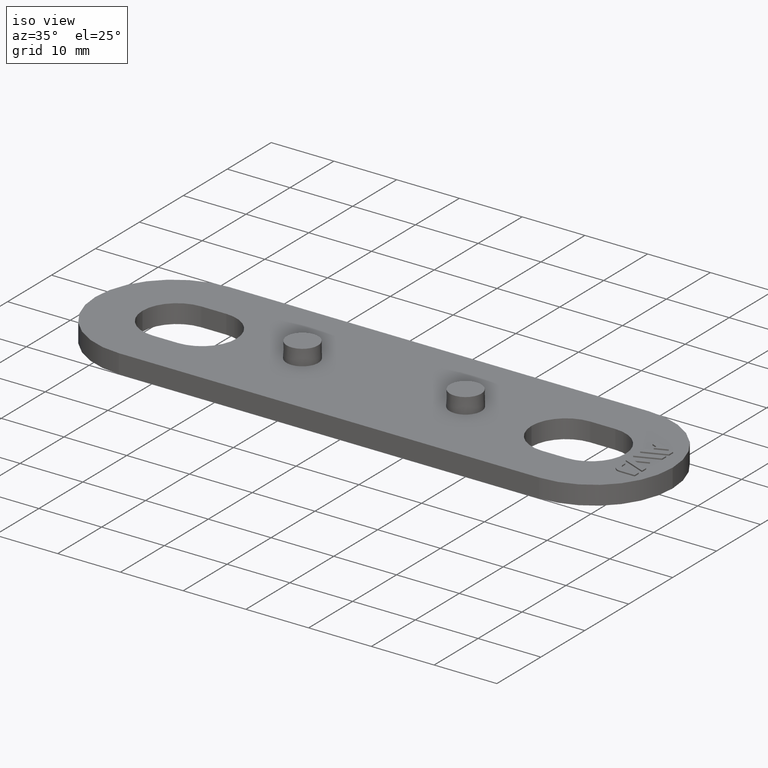
[diagram: clean part render]
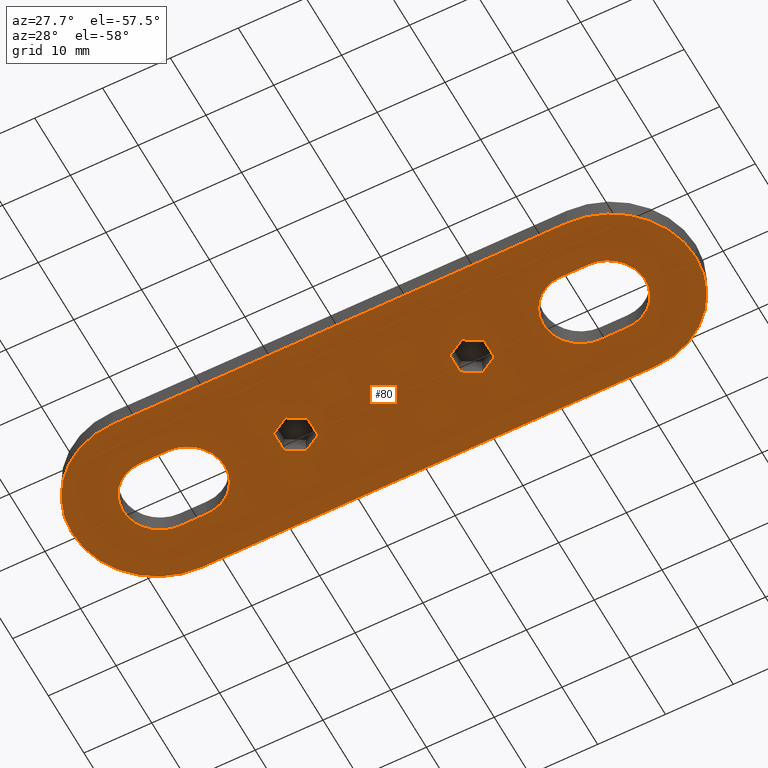
[diagram: tour spotlight — one face highlighted and labeled with its STEP entity id]
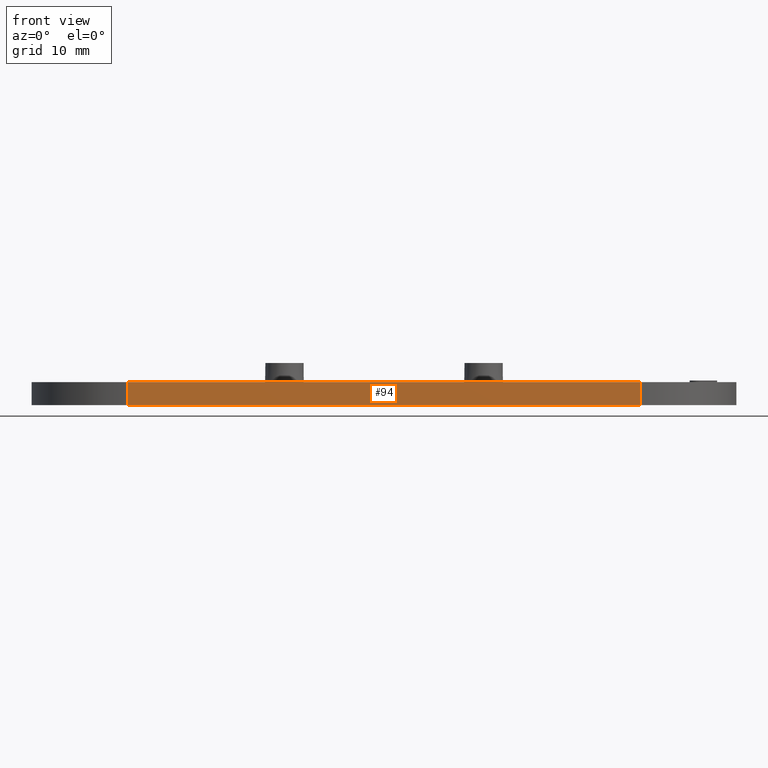
[diagram: tour spotlight — one face highlighted and labeled with its STEP entity id]
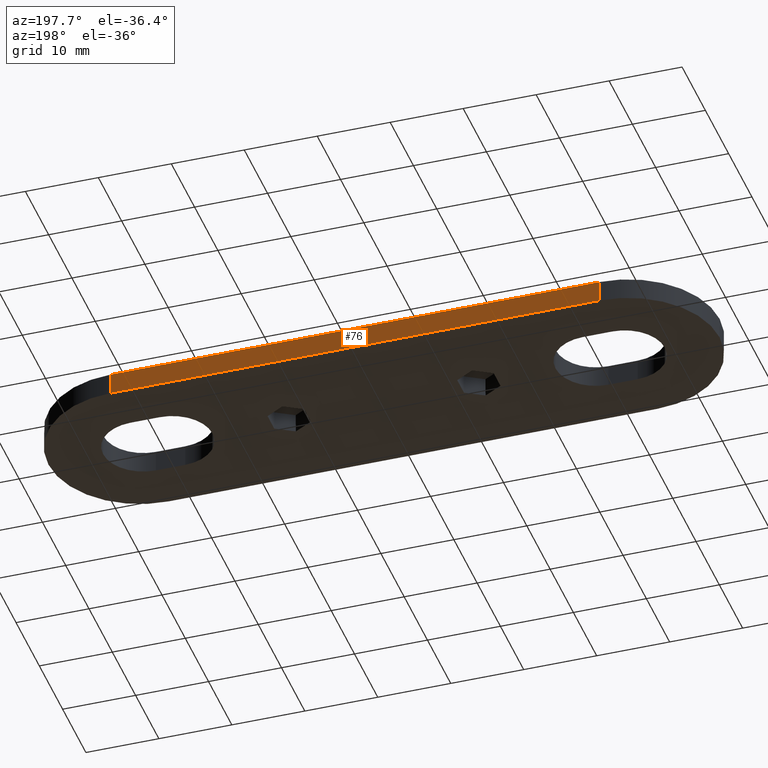
[diagram: tour spotlight — one face highlighted and labeled with its STEP entity id]
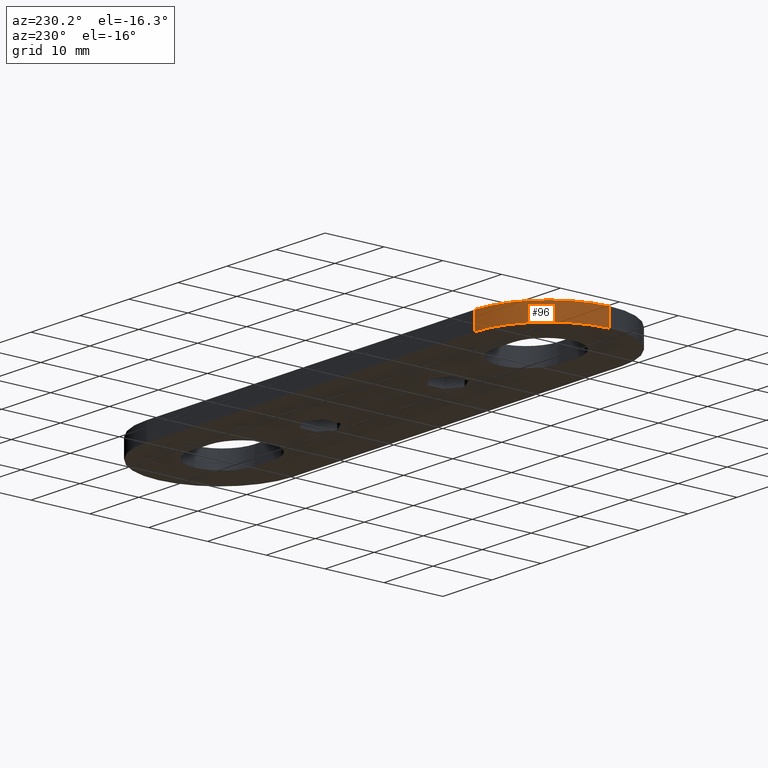
[diagram: tour spotlight — one face highlighted and labeled with its STEP entity id]
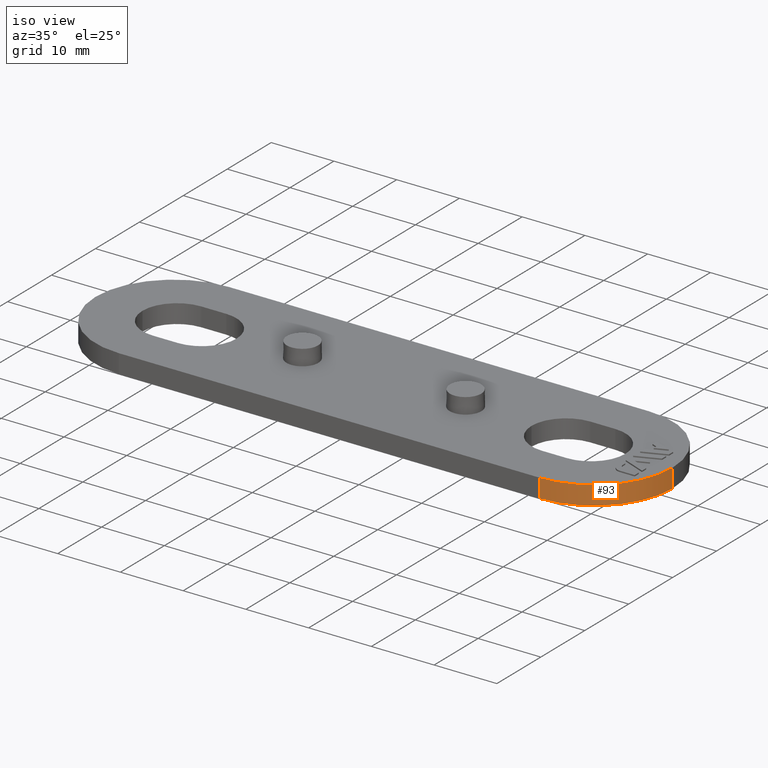
[diagram: tour spotlight — one face highlighted and labeled with its STEP entity id]
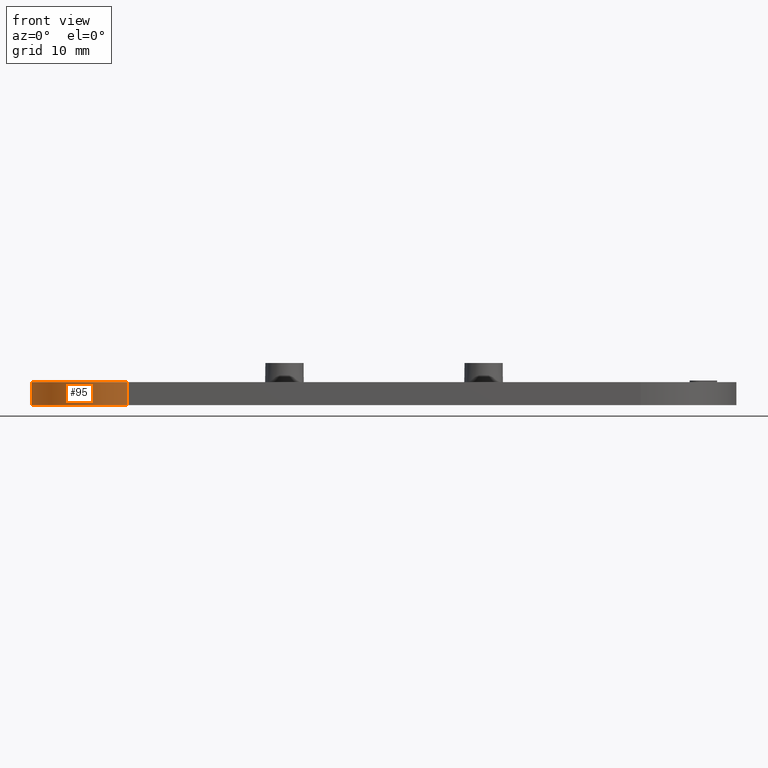
[diagram: tour spotlight — one face highlighted and labeled with its STEP entity id]
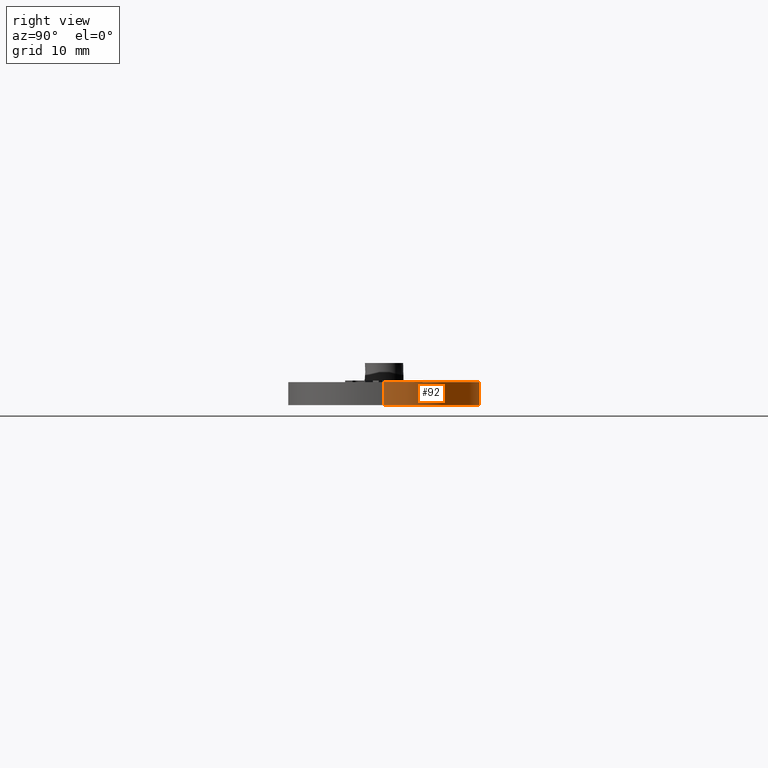
[diagram: tour spotlight — one face highlighted and labeled with its STEP entity id]
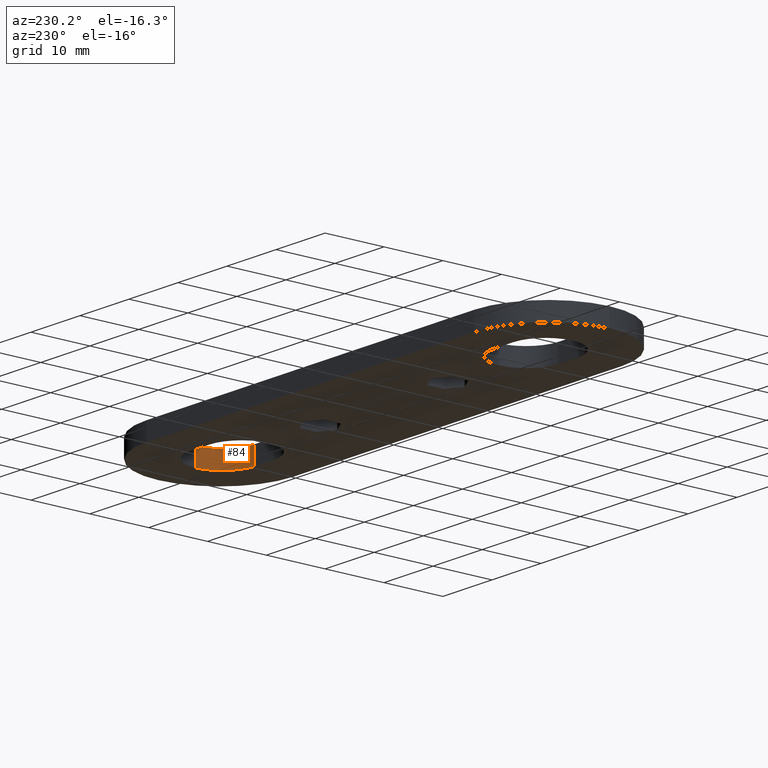
[diagram: tour spotlight — one face highlighted and labeled with its STEP entity id]
A machine part: a face-by-face anatomy tour. The part has 71 B-rep faces; the first image is the clean iso view, then the 8 largest visible faces are spotlighted one at a time (largest first), each with its STEP entity span.

Face 1 — auxiliary view, entity #80. In plain terms, the highlighted planar face has unit normal (0, -0, -1).
Definition (entity closure, byte-faithful):
#80 = ADVANCED_FACE( '', ( #166, #167, #168, #169, #170 ), #171, .T. );
#166 = FACE_BOUND( '', #323, .T. );
#167 = FACE_BOUND( '', #324, .T. );
#168 = FACE_BOUND( '', #325, .T. );
#169 = FACE_BOUND( '', #326, .T. );
#170 = FACE_OUTER_BOUND( '', #327, .T. );
#171 = PLANE( '', #328 );
#323 = EDGE_LOOP( '', ( #540, #541, #542, #543, #544, #545 ) );
#324 = EDGE_LOOP( '', ( #546, #547, #548, #549, #550, #551 ) );
#325 = EDGE_LOOP( '', ( #552, #553, #554, #555, #556, #557 ) );
#326 = EDGE_LOOP( '', ( #558, #559, #560, #561, #562, #563 ) );
#327 = EDGE_LOOP( '', ( #564, #565, #566, #567, #568, #569 ) );
#328 = AXIS2_PLACEMENT_3D( '', #570, #571, #572 );
#540 = ORIENTED_EDGE( '', *, *, #1089, .F. );
#541 = ORIENTED_EDGE( '', *, *, #1090, .F. );
#542 = ORIENTED_EDGE( '', *, *, #1091, .F. );
#543 = ORIENTED_EDGE( '', *, *, #1092, .F. );
#544 = ORIENTED_EDGE( '', *, *, #1093, .F. );
#545 = ORIENTED_EDGE( '', *, *, #1094, .F. );
#546 = ORIENTED_EDGE( '', *, *, #1095, .F. );
#547 = ORIENTED_EDGE( '', *, *, #1096, .F. );
#548 = ORIENTED_EDGE( '', *, *, #1097, .F. );
#549 = ORIENTED_EDGE( '', *, *, #1098, .F. );
#550 = ORIENTED_EDGE( '', *, *, #1099, .F. );
#551 = ORIENTED_EDGE( '', *, *, #1100, .F. );
#552 = ORIENTED_EDGE( '', *, *, #1101, .F. );
#553 = ORIENTED_EDGE( '', *, *, #1086, .F. );
#554 = ORIENTED_EDGE( '', *, *, #1102, .F. );
#555 = ORIENTED_EDGE( '', *, *, #1103, .F. );
#556 = ORIENTED_EDGE( '', *, *, #1104, .F. );
#557 = ORIENTED_EDGE( '', *, *, #1105, .F. );
#558 = ORIENTED_EDGE( '', *, *, #1106, .T. );
#559 = ORIENTED_EDGE( '', *, *, #1107, .T. );
#560 = ORIENTED_EDGE( '', *, *, #1108, .T. );
#561 = ORIENTED_EDGE( '', *, *, #1109, .T. );
#562 = ORIENTED_EDGE( '', *, *, #1110, .T. );
#563 = ORIENTED_EDGE( '', *, *, #1111, .T. );
#564 = ORIENTED_EDGE( '', *, *, #1079, .T. );
#565 = ORIENTED_EDGE( '', *, *, #1112, .T. );
#566 = ORIENTED_EDGE( '', *, *, #1113, .T. );
#567 = ORIENTED_EDGE( '', *, *, #1114, .T. );
#568 = ORIENTED_EDGE( '', *, *, #1115, .T. );
#569 = ORIENTED_EDGE( '', *, *, #1116, .T. );
#570 = CARTESIAN_POINT( '', ( 33.5000000000000, -5.20417042793042E-015, -2.77555756156289E-014 ) );
#571 = DIRECTION( '', ( 0.000000000000000, -6.12303176911189E-017, -1.00000000000000 ) );
#572 = DIRECTION( '', ( 6.16341830003697E-016, 1.00000000000000, -6.12303176911189E-017 ) );
#1079 = EDGE_CURVE( '', #1306, #1304, #1307, .T. );
#1086 = EDGE_CURVE( '', #1317, #1318, #1319, .F. );
#1089 = EDGE_CURVE( '', #1322, #1323, #1324, .T. );
#1090 = EDGE_CURVE( '', #1325, #1322, #1326, .T. );
#1091 = EDGE_CURVE( '', #1327, #1325, #1328, .T. );
#1092 = EDGE_CURVE( '', #1329, #1327, #1330, .T. );
#1093 = EDGE_CURVE( '', #1331, #1329, #1332, .T. );
#1094 = EDGE_CURVE( '', #1323, #1331, #1333, .T. );
#1095 = EDGE_CURVE( '', #1334, #1335, #1336, .T. );
#1096 = EDGE_CURVE( '', #1337, #1334, #1338, .T. );
#1097 = EDGE_CURVE( '', #1339, #1337, #1340, .T. );
#1098 = EDGE_CURVE( '', #1341, #1339, #1342, .T. );
#1099 = EDGE_CURVE( '', #1343, #1341, #1344, .T. );
#1100 = EDGE_CURVE( '', #1335, #1343, #1345, .T. );
#1101 = EDGE_CURVE( '', #1318, #1346, #1347, .F. );
#1102 = EDGE_CURVE( '', #1348, #1317, #1349, .T. );
#1103 = EDGE_CURVE( '', #1350, #1348, #1351, .F. );
#1104 = EDGE_CURVE( '', #1352, #1350, #1353, .F. );
#1105 = EDGE_CURVE( '', #1346, #1352, #1354, .T. );
#1106 = EDGE_CURVE( '', #1355, #1356, #1357, .T. );
#1107 = EDGE_CURVE( '', #1356, #1358, #1359, .T. );
#1108 = EDGE_CURVE( '', #1358, #1360, #1361, .T. );
#1109 = EDGE_CURVE( '', #1360, #1362, #1363, .T. );
#1110 = EDGE_CURVE( '', #1362, #1364, #1365, .F. );
#1111 = EDGE_CURVE( '', #1364, #1355, #1366, .T. );
#1112 = EDGE_CURVE( '', #1304, #1367, #1368, .T. );
#1113 = EDGE_CURVE( '', #1367, #1369, #1370, .T. );
#1114 = EDGE_CURVE( '', #1369, #1371, #1372, .T. );
#1115 = EDGE_CURVE( '', #1371, #1373, #1374, .T. );
#1116 = EDGE_CURVE( '', #1373, #1306, #1375, .T. );
#1304 = VERTEX_POINT( '', #1634 );
#1306 = VERTEX_POINT( '', #1637 );
#1307 = LINE( '', #1638, #1639 );
#1317 = VERTEX_POINT( '', #1655 );
#1318 = VERTEX_POINT( '', #1656 );
#1319 = CIRCLE( '', #1657, 5.50000000000000 );
#1322 = VERTEX_POINT( '', #1662 );
#1323 = VERTEX_POINT( '', #1663 );
#1324 = LINE( '', #1664, #1665 );
#1325 = VERTEX_POINT( '', #1666 );
#1326 = LINE( '', #1667, #1668 );
#1327 = VERTEX_POINT( '', #1669 );
#1328 = LINE( '', #1670, #1671 );
#1329 = VERTEX_POINT( '', #1672 );
#1330 = LINE( '', #1673, #1674 );
#1331 = VERTEX_POINT( '', #1675 );
#1332 = LINE( '', #1676, #1677 );
#1333 = LINE( '', #1678, #1679 );
#1334 = VERTEX_POINT( '', #1680 );
#1335 = VERTEX_POINT( '', #1681 );
#1336 = LINE( '', #1682, #1683 );
#1337 = VERTEX_POINT( '', #1684 );
#1338 = LINE( '', #1685, #1686 );
#1339 = VERTEX_POINT( '', #1687 );
#1340 = LINE( '', #1688, #1689 );
#1341 = VERTEX_POINT( '', #1690 );
#1342 = LINE( '', #1691, #1692 );
#1343 = VERTEX_POINT( '', #1693 );
#1344 = LINE( '', #1694, #1695 );
#1345 = LINE( '', #1696, #1697 );
#1346 = VERTEX_POINT( '', #1698 );
#1347 = CIRCLE( '', #1699, 5.50000000000000 );
#1348 = VERTEX_POINT( '', #1700 );
#1349 = LINE( '', #1701, #1702 );
#1350 = VERTEX_POINT( '', #1703 );
#1351 = CIRCLE( '', #1704, 5.50000000000000 );
#1352 = VERTEX_POINT( '', #1705 );
#1353 = CIRCLE( '', #1706, 5.50000000000000 );
#1354 = LINE( '', #1707, #1708 );
#1355 = VERTEX_POINT( '', #1709 );
#1356 = VERTEX_POINT( '', #1710 );
#1357 = CIRCLE( '', #1711, 5.49999999999999 );
#1358 = VERTEX_POINT( '', #1712 );
#1359 = LINE( '', #1713, #1714 );
#1360 = VERTEX_POINT( '', #1715 );
#1361 = CIRCLE( '', #1716, 5.50000000000000 );
#1362 = VERTEX_POINT( '', #1717 );
#1363 = CIRCLE( '', #1718, 5.49999999999999 );
#1364 = VERTEX_POINT( '', #1719 );
#1365 = LINE( '', #1720, #1721 );
#1366 = CIRCLE( '', #1722, 5.49999999999999 );
#1367 = VERTEX_POINT( '', #1723 );
#1368 = CIRCLE( '', #1724, 12.5000000000000 );
#1369 = VERTEX_POINT( '', #1725 );
#1370 = CIRCLE( '', #1726, 12.5000000000000 );
#1371 = VERTEX_POINT( '', #1727 );
#1372 = LINE( '', #1728, #1729 );
#1373 = VERTEX_POINT( '', #1730 );
#1374 = CIRCLE( '', #1731, 12.5000000000000 );
#1375 = CIRCLE( '', #1732, 12.5000000000000 );
#1634 = CARTESIAN_POINT( '', ( 33.5000000000000, 12.5000000000000, -2.85209545867679E-014 ) );
#1637 = CARTESIAN_POINT( '', ( -33.5000000000000, 12.5000000000000, -2.85209545867679E-014 ) );
#1638 = CARTESIAN_POINT( '', ( -33.5000000000000, 12.5000000000000, -2.85209545867679E-014 ) );
#1639 = VECTOR( '', #2031, 1000.00000000000 );
#1655 = CARTESIAN_POINT( '', ( 29.0000000000000, -5.49999999999999, -2.74188088683278E-014 ) );
#1656 = CARTESIAN_POINT( '', ( 23.5000000000000, 4.98489731480881E-015, -2.77555756156289E-014 ) );
#1657 = AXIS2_PLACEMENT_3D( '', #2038, #2039, #2040 );
#1662 = CARTESIAN_POINT( '', ( -10.5000000000000, 1.44337567297406, -8.83783510038341E-017 ) );
#1663 = CARTESIAN_POINT( '', ( -10.5000000000000, -1.44337567297406, 8.83783510038342E-017 ) );
#1664 = CARTESIAN_POINT( '', ( -10.5000000000000, -1.44337567297406, 8.83783510038343E-017 ) );
#1665 = VECTOR( '', #2043, 1000.00000000000 );
#1666 = CARTESIAN_POINT( '', ( -13.0000000000000, 2.88675134594812, -1.76756702007669E-016 ) );
#1667 = CARTESIAN_POINT( '', ( -9.25000000000002, 0.721687836487028, -4.41891755019170E-017 ) );
#1668 = VECTOR( '', #2044, 1000.00000000000 );
#1669 = CARTESIAN_POINT( '', ( -15.5000000000000, 1.44337567297406, -8.83783510038340E-017 ) );
#1670 = CARTESIAN_POINT( '', ( -13.0000000000000, 2.88675134594813, -1.76756702007669E-016 ) );
#1671 = VECTOR( '', #2045, 1000.00000000000 );
#1672 = CARTESIAN_POINT( '', ( -15.5000000000000, -1.44337567297407, 8.83783510038346E-017 ) );
#1673 = CARTESIAN_POINT( '', ( -15.5000000000000, -1.44337567297406, 8.83783510038342E-017 ) );
#1674 = VECTOR( '', #2046, 1000.00000000000 );
#1675 = CARTESIAN_POINT( '', ( -13.0000000000000, -2.88675134594813, 1.76756702007669E-016 ) );
#1676 = CARTESIAN_POINT( '', ( -11.7500000000000, -3.60843918243516, 2.20945877509586E-016 ) );
#1677 = VECTOR( '', #2047, 1000.00000000000 );
#1678 = CARTESIAN_POINT( '', ( -10.5000000000000, -1.44337567297406, 8.83783510038342E-017 ) );
#1679 = VECTOR( '', #2048, 1000.00000000000 );
#1680 = CARTESIAN_POINT( '', ( 15.5000000000000, 1.44337567297407, -8.83783510038347E-017 ) );
#1681 = CARTESIAN_POINT( '', ( 15.5000000000000, -1.44337567297406, 8.83783510038344E-017 ) );
#1682 = CARTESIAN_POINT( '', ( 15.5000000000000, -1.44337567297406, 8.83783510038344E-017 ) );
#1683 = VECTOR( '', #2049, 1000.00000000000 );
#1684 = CARTESIAN_POINT( '', ( 13.0000000000000, 2.88675134594813, -1.76756702007669E-016 ) );
#1685 = CARTESIAN_POINT( '', ( 16.7500000000000, 0.721687836487036, -4.41891755019174E-017 ) );
#1686 = VECTOR( '', #2050, 1000.00000000000 );
#1687 = CARTESIAN_POINT( '', ( 10.5000000000000, 1.44337567297407, -8.83783510038346E-017 ) );
#1688 = CARTESIAN_POINT( '', ( 13.0000000000000, 2.88675134594813, -1.76756702007669E-016 ) );
#1689 = VECTOR( '', #2051, 1000.00000000000 );
#1690 = CARTESIAN_POINT( '', ( 10.5000000000000, -1.44337567297406, 8.83783510038345E-017 ) );
#1691 = CARTESIAN_POINT( '', ( 10.5000000000000, -1.44337567297406, 8.83783510038344E-017 ) );
#1692 = VECTOR( '', #2052, 1000.00000000000 );
#1693 = CARTESIAN_POINT( '', ( 13.0000000000000, -2.88675134594813, 1.76756702007669E-016 ) );
#1694 = CARTESIAN_POINT( '', ( 14.2500000000000, -3.60843918243516, 2.20945877509586E-016 ) );
#1695 = VECTOR( '', #2053, 1000.00000000000 );
#1696 = CARTESIAN_POINT( '', ( 15.5000000000000, -1.44337567297406, 8.83783510038344E-017 ) );
#1697 = VECTOR( '', #2054, 1000.00000000000 );
#1698 = CARTESIAN_POINT( '', ( 29.0000000000000, 5.50000000000000, -2.80923423629301E-014 ) );
#1699 = AXIS2_PLACEMENT_3D( '', #2055, #2056, #2057 );
#1700 = CARTESIAN_POINT( '', ( 33.0000000000000, -5.49999999999999, -2.74188088683278E-014 ) );
#1701 = CARTESIAN_POINT( '', ( 29.0000000000000, -5.49999999999999, -2.74188088683278E-014 ) );
#1702 = VECTOR( '', #2058, 1000.00000000000 );
#1703 = CARTESIAN_POINT( '', ( 38.5000000000000, 2.82135832708683E-015, -2.77555756156289E-014 ) );
#1704 = AXIS2_PLACEMENT_3D( '', #2059, #2060, #2061 );
#1705 = CARTESIAN_POINT( '', ( 33.0000000000000, 5.50000000000000, -2.80923423629301E-014 ) );
#1706 = AXIS2_PLACEMENT_3D( '', #2062, #2063, #2064 );
#1707 = CARTESIAN_POINT( '', ( 33.0000000000000, 5.50000000000000, -2.80923423629301E-014 ) );
#1708 = VECTOR( '', #2065, 1000.00000000000 );
#1709 = CARTESIAN_POINT( '', ( -38.5000000000000, -7.18603553037078E-015, -2.77555756156289E-014 ) );
#1710 = CARTESIAN_POINT( '', ( -33.0000000000000, -5.50000000000000, -2.74188088683278E-014 ) );
#1711 = AXIS2_PLACEMENT_3D( '', #2066, #2067, #2068 );
#1712 = CARTESIAN_POINT( '', ( -29.0000000000000, -5.50000000000000, -2.74188088683278E-014 ) );
#1713 = CARTESIAN_POINT( '', ( 33.5000000000000, -5.50000000000004, -2.74188088683278E-014 ) );
#1714 = VECTOR( '', #2069, 1000.00000000000 );
#1715 = CARTESIAN_POINT( '', ( -23.5000000000000, -3.46146677221322E-015, -2.77555756156289E-014 ) );
#1716 = AXIS2_PLACEMENT_3D( '', #2070, #2071, #2072 );
#1717 = CARTESIAN_POINT( '', ( -29.0000000000000, 5.49999999999998, -2.80923423629301E-014 ) );
#1718 = AXIS2_PLACEMENT_3D( '', #2073, #2074, #2075 );
#1719 = CARTESIAN_POINT( '', ( -33.0000000000000, 5.49999999999998, -2.80923423629301E-014 ) );
#1720 = CARTESIAN_POINT( '', ( 33.5000000000000, 5.49999999999994, -2.80923423629301E-014 ) );
#1721 = VECTOR( '', #2076, 1000.00000000000 );
#1722 = AXIS2_PLACEMENT_3D( '', #2077, #2078, #2079 );
#1723 = CARTESIAN_POINT( '', ( 46.0000000000000, -1.73472347597681E-015, -2.77555756156289E-014 ) );
#1724 = AXIS2_PLACEMENT_3D( '', #2080, #2081, #2082 );
#1725 = CARTESIAN_POINT( '', ( 33.5000000000000, -12.5000000000000, -2.69901966444899E-014 ) );
#1726 = AXIS2_PLACEMENT_3D( '', #2083, #2084, #2085 );
#1727 = CARTESIAN_POINT( '', ( -33.5000000000000, -12.5000000000000, -2.69901966444899E-014 ) );
#1728 = CARTESIAN_POINT( '', ( 33.5000000000000, -12.5000000000000, -2.69901966444899E-014 ) );
#1729 = VECTOR( '', #2086, 1000.00000000000 );
#1730 = CARTESIAN_POINT( '', ( -46.0000000000000, -1.38777878078145E-014, -2.77555756156289E-014 ) );
#1731 = AXIS2_PLACEMENT_3D( '', #2087, #2088, #2089 );
#1732 = AXIS2_PLACEMENT_3D( '', #2090, #2091, #2092 );
#2031 = DIRECTION( '', ( 1.00000000000000, 0.000000000000000, 0.000000000000000 ) );
#2038 = CARTESIAN_POINT( '', ( 29.0000000000000, 3.46944695195362E-015, -2.77555756156289E-014 ) );
#2039 = DIRECTION( '', ( 0.000000000000000, 6.12303176911189E-017, 1.00000000000000 ) );
#2040 = DIRECTION( '', ( 0.000000000000000, -1.00000000000000, 6.12303176911189E-017 ) );
#2043 = DIRECTION( '', ( 4.99600361081321E-016, -1.00000000000000, 6.12303176911189E-017 ) );
#2044 = DIRECTION( '', ( 0.866025403784439, -0.500000000000000, 3.06151588455594E-017 ) );
#2045 = DIRECTION( '', ( 0.866025403784438, 0.500000000000000, -3.06151588455594E-017 ) );
#2046 = DIRECTION( '', ( 1.11022302462516E-016, 1.00000000000000, -6.12303176911189E-017 ) );
#2047 = DIRECTION( '', ( -0.866025403784439, 0.500000000000000, -3.06151588455594E-017 ) );
#2048 = DIRECTION( '', ( -0.866025403784439, -0.500000000000000, 3.06151588455594E-017 ) );
#2049 = DIRECTION( '', ( 4.99600361081321E-016, -1.00000000000000, 6.12303176911189E-017 ) );
#2050 = DIRECTION( '', ( 0.866025403784439, -0.500000000000000, 3.06151588455594E-017 ) );
#2051 = DIRECTION( '', ( 0.866025403784438, 0.500000000000000, -3.06151588455594E-017 ) );
#2052 = DIRECTION( '', ( 1.11022302462516E-016, 1.00000000000000, -6.12303176911189E-017 ) );
#2053 = DIRECTION( '', ( -0.866025403784439, 0.500000000000000, -3.06151588455594E-017 ) );
#2054 = DIRECTION( '', ( -0.866025403784439, -0.500000000000000, 3.06151588455594E-017 ) );
#2055 = CARTESIAN_POINT( '', ( 29.0000000000000, 2.95596880306448E-015, -2.77555756156289E-014 ) );
#2056 = DIRECTION( '', ( 0.000000000000000, 6.12303176911189E-017, 1.00000000000000 ) );
#2057 = DIRECTION( '', ( 0.000000000000000, -1.00000000000000, 6.12303176911189E-017 ) );
#2058 = DIRECTION( '', ( -1.00000000000000, -1.15648231731787E-016, 7.08117796935346E-033 ) );
#2059 = CARTESIAN_POINT( '', ( 33.0000000000000, 5.20417042793042E-015, -2.77555756156289E-014 ) );
#2060 = DIRECTION( '', ( 0.000000000000000, 6.12303176911189E-017, 1.00000000000000 ) );
#2061 = DIRECTION( '', ( 0.000000000000000, -1.00000000000000, 6.12303176911189E-017 ) );
#2062 = CARTESIAN_POINT( '', ( 33.0000000000000, 3.46944695195362E-015, -2.77555756156289E-014 ) );
#2063 = DIRECTION( '', ( 0.000000000000000, 6.12303176911189E-017, 1.00000000000000 ) );
#2064 = DIRECTION( '', ( 0.000000000000000, -1.00000000000000, 6.12303176911189E-017 ) );
#2065 = DIRECTION( '', ( 1.00000000000000, 1.15648231731787E-016, -7.08117796935346E-033 ) );
#2066 = CARTESIAN_POINT( '', ( -33.0000000000000, -1.21430643318377E-014, -2.77555756156289E-014 ) );
#2067 = DIRECTION( '', ( 0.000000000000000, 6.12303176911189E-017, 1.00000000000000 ) );
#2068 = DIRECTION( '', ( 0.000000000000000, -1.00000000000000, 6.12303176911189E-017 ) );
#2069 = DIRECTION( '', ( 1.00000000000000, -6.16341830003697E-016, 3.77388060574520E-032 ) );
#2070 = CARTESIAN_POINT( '', ( -29.0000000000000, -1.04083408558608E-014, -2.77555756156289E-014 ) );
#2071 = DIRECTION( '', ( 0.000000000000000, 6.12303176911189E-017, 1.00000000000000 ) );
#2072 = DIRECTION( '', ( 0.000000000000000, -1.00000000000000, 6.12303176911189E-017 ) );
#2073 = CARTESIAN_POINT( '', ( -29.0000000000000, -9.54097911787244E-015, -2.77555756156289E-014 ) );
#2074 = DIRECTION( '', ( 0.000000000000000, 6.12303176911189E-017, 1.00000000000000 ) );
#2075 = DIRECTION( '', ( 0.000000000000000, -1.00000000000000, 6.12303176911189E-017 ) );
#2076 = DIRECTION( '', ( 1.00000000000000, -6.16341830003697E-016, 3.77388060574520E-032 ) );
#2077 = CARTESIAN_POINT( '', ( -33.0000000000000, -8.67361737988404E-015, -2.77555756156289E-014 ) );
#2078 = DIRECTION( '', ( 0.000000000000000, 6.12303176911189E-017, 1.00000000000000 ) );
#2079 = DIRECTION( '', ( 0.000000000000000, -1.00000000000000, 6.12303176911189E-017 ) );
#2080 = CARTESIAN_POINT( '', ( 33.5000000000000, -5.20417042793042E-015, -2.77555756156289E-014 ) );
#2081 = DIRECTION( '', ( 5.60519385729928E-049, -6.12303176911189E-017, -1.00000000000000 ) );
#2082 = DIRECTION( '', ( 6.12303176911189E-017, 1.00000000000000, -6.12303176911189E-017 ) );
#2083 = CARTESIAN_POINT( '', ( 33.5000000000000, -5.20417042793042E-015, -2.77555756156289E-014 ) );
#2084 = DIRECTION( '', ( 5.60519385729928E-049, -6.12303176911189E-017, -1.00000000000000 ) );
#2085 = DIRECTION( '', ( 6.12303176911189E-017, 1.00000000000000, -6.12303176911189E-017 ) );
#2086 = DIRECTION( '', ( -1.00000000000000, 0.000000000000000, 0.000000000000000 ) );
#2087 = CARTESIAN_POINT( '', ( -33.5000000000000, -5.20417042793042E-015, -2.77555756156289E-014 ) );
#2088 = DIRECTION( '', ( 8.96831017167884E-048, -6.12303176911189E-017, -1.00000000000000 ) );
#2089 = DIRECTION( '', ( -4.93881194621460E-016, 1.00000000000000, -6.12303176911189E-017 ) );
#2090 = CARTESIAN_POINT( '', ( -33.5000000000000, -5.20417042793042E-015, -2.77555756156289E-014 ) );
#2091 = DIRECTION( '', ( 4.48415508583942E-048, -6.12303176911189E-017, -1.00000000000000 ) );
#2092 = DIRECTION( '', ( -4.93881194621460E-016, 1.00000000000000, -6.12303176911189E-017 ) );

Face 2 — front view, entity #94. In plain terms, the highlighted planar face has unit normal (0, 1, -0).
Definition (entity closure, byte-faithful):
#94 = ADVANCED_FACE( '', ( #198 ), #199, .F. );
#198 = FACE_OUTER_BOUND( '', #355, .T. );
#199 = PLANE( '', #356 );
#355 = EDGE_LOOP( '', ( #664, #665, #666, #667 ) );
#356 = AXIS2_PLACEMENT_3D( '', #668, #669, #670 );
#664 = ORIENTED_EDGE( '', *, *, #1050, .T. );
#665 = ORIENTED_EDGE( '', *, *, #1129, .F. );
#666 = ORIENTED_EDGE( '', *, *, #1114, .F. );
#667 = ORIENTED_EDGE( '', *, *, #1128, .T. );
#668 = CARTESIAN_POINT( '', ( 33.5000000000000, -12.5000000000000, -2.69901966444899E-014 ) );
#669 = DIRECTION( '', ( 9.86076131526265E-032, 1.00000000000000, -6.12303176911189E-017 ) );
#670 = DIRECTION( '', ( 1.00000000000000, -9.86076131526265E-032, 6.03777548009827E-048 ) );
#1050 = EDGE_CURVE( '', #1249, #1247, #1250, .T. );
#1114 = EDGE_CURVE( '', #1369, #1371, #1372, .T. );
#1128 = EDGE_CURVE( '', #1369, #1249, #1387, .T. );
#1129 = EDGE_CURVE( '', #1371, #1247, #1388, .T. );
#1247 = VERTEX_POINT( '', #1559 );
#1249 = VERTEX_POINT( '', #1561 );
#1250 = LINE( '', #1562, #1563 );
#1369 = VERTEX_POINT( '', #1725 );
#1371 = VERTEX_POINT( '', #1727 );
#1372 = LINE( '', #1728, #1729 );
#1387 = LINE( '', #1755, #1756 );
#1388 = LINE( '', #1757, #1758 );
#1559 = CARTESIAN_POINT( '', ( -33.5000000000000, -12.5000000000000, 2.99999999999998 ) );
#1561 = CARTESIAN_POINT( '', ( 33.5000000000000, -12.5000000000000, 2.99999999999998 ) );
#1562 = CARTESIAN_POINT( '', ( 33.5000000000000, -12.5000000000000, 2.99999999999998 ) );
#1563 = VECTOR( '', #1982, 1000.00000000000 );
#1725 = CARTESIAN_POINT( '', ( 33.5000000000000, -12.5000000000000, -2.69901966444899E-014 ) );
#1727 = CARTESIAN_POINT( '', ( -33.5000000000000, -12.5000000000000, -2.69901966444899E-014 ) );
#1728 = CARTESIAN_POINT( '', ( 33.5000000000000, -12.5000000000000, -2.69901966444899E-014 ) );
#1729 = VECTOR( '', #2086, 1000.00000000000 );
#1755 = CARTESIAN_POINT( '', ( 33.5000000000000, -12.5000000000000, -2.69901966444899E-014 ) );
#1756 = VECTOR( '', #2104, 1000.00000000000 );
#1757 = CARTESIAN_POINT( '', ( -33.5000000000000, -12.5000000000000, -2.69901966444899E-014 ) );
#1758 = VECTOR( '', #2105, 1000.00000000000 );
#1982 = DIRECTION( '', ( -1.00000000000000, 0.000000000000000, 0.000000000000000 ) );
#2086 = DIRECTION( '', ( -1.00000000000000, 0.000000000000000, 0.000000000000000 ) );
#2104 = DIRECTION( '', ( 0.000000000000000, 6.12303176911189E-017, 1.00000000000000 ) );
#2105 = DIRECTION( '', ( 0.000000000000000, 6.12303176911189E-017, 1.00000000000000 ) );

Face 3 — auxiliary view, entity #76. In plain terms, the highlighted planar face has unit normal (-0, -1, 0).
Definition (entity closure, byte-faithful):
#76 = ADVANCED_FACE( '', ( #158 ), #159, .F. );
#158 = FACE_OUTER_BOUND( '', #315, .T. );
#159 = PLANE( '', #316 );
#315 = EDGE_LOOP( '', ( #512, #513, #514, #515 ) );
#316 = AXIS2_PLACEMENT_3D( '', #516, #517, #518 );
#512 = ORIENTED_EDGE( '', *, *, #1047, .T. );
#513 = ORIENTED_EDGE( '', *, *, #1078, .F. );
#514 = ORIENTED_EDGE( '', *, *, #1079, .F. );
#515 = ORIENTED_EDGE( '', *, *, #1080, .T. );
#516 = CARTESIAN_POINT( '', ( -33.5000000000000, 12.5000000000000, -2.85209545867679E-014 ) );
#517 = DIRECTION( '', ( -9.86076131526265E-032, -1.00000000000000, 6.12303176911189E-017 ) );
#518 = DIRECTION( '', ( -1.00000000000000, 9.86076131526265E-032, -6.03777548009827E-048 ) );
#1047 = EDGE_CURVE( '', #1242, #1243, #1244, .T. );
#1078 = EDGE_CURVE( '', #1304, #1243, #1305, .T. );
#1079 = EDGE_CURVE( '', #1306, #1304, #1307, .T. );
#1080 = EDGE_CURVE( '', #1306, #1242, #1308, .T. );
#1242 = VERTEX_POINT( '', #1553 );
#1243 = VERTEX_POINT( '', #1554 );
#1244 = LINE( '', #1555, #1556 );
#1304 = VERTEX_POINT( '', #1634 );
#1305 = LINE( '', #1635, #1636 );
#1306 = VERTEX_POINT( '', #1637 );
#1307 = LINE( '', #1638, #1639 );
#1308 = LINE( '', #1640, #1641 );
#1553 = CARTESIAN_POINT( '', ( -33.5000000000000, 12.5000000000000, 2.99999999999997 ) );
#1554 = CARTESIAN_POINT( '', ( 33.5000000000000, 12.5000000000000, 2.99999999999997 ) );
#1555 = CARTESIAN_POINT( '', ( -33.5000000000000, 12.5000000000000, 2.99999999999997 ) );
#1556 = VECTOR( '', #1975, 1000.00000000000 );
#1634 = CARTESIAN_POINT( '', ( 33.5000000000000, 12.5000000000000, -2.85209545867679E-014 ) );
#1635 = CARTESIAN_POINT( '', ( 33.5000000000000, 12.5000000000000, -2.85209545867679E-014 ) );
#1636 = VECTOR( '', #2030, 1000.00000000000 );
#1637 = CARTESIAN_POINT( '', ( -33.5000000000000, 12.5000000000000, -2.85209545867679E-014 ) );
#1638 = CARTESIAN_POINT( '', ( -33.5000000000000, 12.5000000000000, -2.85209545867679E-014 ) );
#1639 = VECTOR( '', #2031, 1000.00000000000 );
#1640 = CARTESIAN_POINT( '', ( -33.5000000000000, 12.5000000000000, -2.85209545867679E-014 ) );
#1641 = VECTOR( '', #2032, 1000.00000000000 );
#1975 = DIRECTION( '', ( 1.00000000000000, 0.000000000000000, 0.000000000000000 ) );
#2030 = DIRECTION( '', ( 0.000000000000000, 6.12303176911189E-017, 1.00000000000000 ) );
#2031 = DIRECTION( '', ( 1.00000000000000, 0.000000000000000, 0.000000000000000 ) );
#2032 = DIRECTION( '', ( 0.000000000000000, 6.12303176911189E-017, 1.00000000000000 ) );

Face 4 — auxiliary view, entity #96. In plain terms, the highlighted cylindrical surface (partial cylindrical patch) has radius 12.5 mm, axis along (-0, -0, -1).
Definition (entity closure, byte-faithful):
#96 = ADVANCED_FACE( '', ( #202 ), #203, .T. );
#202 = FACE_OUTER_BOUND( '', #359, .T. );
#203 = CYLINDRICAL_SURFACE( '', #360, 12.5000000000000 );
#359 = EDGE_LOOP( '', ( #678, #679, #680, #681 ) );
#360 = AXIS2_PLACEMENT_3D( '', #682, #683, #684 );
#678 = ORIENTED_EDGE( '', *, *, #1048, .T. );
#679 = ORIENTED_EDGE( '', *, *, #1080, .F. );
#680 = ORIENTED_EDGE( '', *, *, #1116, .F. );
#681 = ORIENTED_EDGE( '', *, *, #1130, .T. );
#682 = CARTESIAN_POINT( '', ( -33.5000000000000, -5.20417042793042E-015, -2.77555756156289E-014 ) );
#683 = DIRECTION( '', ( -4.48415508583942E-048, -6.12303176911189E-017, -1.00000000000000 ) );
#684 = DIRECTION( '', ( -6.16341830003697E-016, -1.00000000000000, 6.12303176911189E-017 ) );
#1048 = EDGE_CURVE( '', #1245, #1242, #1246, .T. );
#1080 = EDGE_CURVE( '', #1306, #1242, #1308, .T. );
#1116 = EDGE_CURVE( '', #1373, #1306, #1375, .T. );
#1130 = EDGE_CURVE( '', #1373, #1245, #1389, .T. );
#1242 = VERTEX_POINT( '', #1553 );
#1245 = VERTEX_POINT( '', #1557 );
#1246 = CIRCLE( '', #1558, 12.5000000000000 );
#1306 = VERTEX_POINT( '', #1637 );
#1308 = LINE( '', #1640, #1641 );
#1373 = VERTEX_POINT( '', #1730 );
#1375 = CIRCLE( '', #1732, 12.5000000000000 );
#1389 = LINE( '', #1759, #1760 );
#1553 = CARTESIAN_POINT( '', ( -33.5000000000000, 12.5000000000000, 2.99999999999997 ) );
#1557 = CARTESIAN_POINT( '', ( -46.0000000000000, -1.36940968547411E-014, 2.99999999999998 ) );
#1558 = AXIS2_PLACEMENT_3D( '', #1976, #1977, #1978 );
#1637 = CARTESIAN_POINT( '', ( -33.5000000000000, 12.5000000000000, -2.85209545867679E-014 ) );
#1640 = CARTESIAN_POINT( '', ( -33.5000000000000, 12.5000000000000, -2.85209545867679E-014 ) );
#1641 = VECTOR( '', #2032, 1000.00000000000 );
#1730 = CARTESIAN_POINT( '', ( -46.0000000000000, -1.38777878078145E-014, -2.77555756156289E-014 ) );
#1732 = AXIS2_PLACEMENT_3D( '', #2090, #2091, #2092 );
#1759 = CARTESIAN_POINT( '', ( -46.0000000000000, -1.38777878078145E-014, -2.77555756156289E-014 ) );
#1760 = VECTOR( '', #2106, 1000.00000000000 );
#1976 = CARTESIAN_POINT( '', ( -33.5000000000000, -5.02047947485707E-015, 2.99999999999998 ) );
#1977 = DIRECTION( '', ( 4.48415508583942E-048, -6.12303176911189E-017, -1.00000000000000 ) );
#1978 = DIRECTION( '', ( -4.93881194621460E-016, 1.00000000000000, -6.12303176911189E-017 ) );
#2032 = DIRECTION( '', ( 0.000000000000000, 6.12303176911189E-017, 1.00000000000000 ) );
#2090 = CARTESIAN_POINT( '', ( -33.5000000000000, -5.20417042793042E-015, -2.77555756156289E-014 ) );
#2091 = DIRECTION( '', ( 4.48415508583942E-048, -6.12303176911189E-017, -1.00000000000000 ) );
#2092 = DIRECTION( '', ( -4.93881194621460E-016, 1.00000000000000, -6.12303176911189E-017 ) );
#2106 = DIRECTION( '', ( 0.000000000000000, 6.12303176911189E-017, 1.00000000000000 ) );

Face 5 — iso view, entity #93. In plain terms, the highlighted cylindrical surface (partial cylindrical patch) has radius 12.5 mm, axis along (0, -0, -1).
Definition (entity closure, byte-faithful):
#93 = ADVANCED_FACE( '', ( #196 ), #197, .T. );
#196 = FACE_OUTER_BOUND( '', #353, .T. );
#197 = CYLINDRICAL_SURFACE( '', #354, 12.5000000000000 );
#353 = EDGE_LOOP( '', ( #657, #658, #659, #660 ) );
#354 = AXIS2_PLACEMENT_3D( '', #661, #662, #663 );
#657 = ORIENTED_EDGE( '', *, *, #1051, .T. );
#658 = ORIENTED_EDGE( '', *, *, #1128, .F. );
#659 = ORIENTED_EDGE( '', *, *, #1113, .F. );
#660 = ORIENTED_EDGE( '', *, *, #1127, .T. );
#661 = CARTESIAN_POINT( '', ( 33.5000000000000, -5.20417042793042E-015, -2.77555756156289E-014 ) );
#662 = DIRECTION( '', ( 0.000000000000000, -6.12303176911189E-017, -1.00000000000000 ) );
#663 = DIRECTION( '', ( -6.16341830003698E-016, -1.00000000000000, 6.12303176911189E-017 ) );
#1051 = EDGE_CURVE( '', #1251, #1249, #1252, .T. );
#1113 = EDGE_CURVE( '', #1367, #1369, #1370, .T. );
#1127 = EDGE_CURVE( '', #1367, #1251, #1386, .T. );
#1128 = EDGE_CURVE( '', #1369, #1249, #1387, .T. );
#1249 = VERTEX_POINT( '', #1561 );
#1251 = VERTEX_POINT( '', #1564 );
#1252 = CIRCLE( '', #1565, 12.5000000000000 );
#1367 = VERTEX_POINT( '', #1723 );
#1369 = VERTEX_POINT( '', #1725 );
#1370 = CIRCLE( '', #1726, 12.5000000000000 );
#1386 = LINE( '', #1753, #1754 );
#1387 = LINE( '', #1755, #1756 );
#1561 = CARTESIAN_POINT( '', ( 33.5000000000000, -12.5000000000000, 2.99999999999998 ) );
#1564 = CARTESIAN_POINT( '', ( 46.0000000000000, -1.55103252290345E-015, 2.99999999999998 ) );
#1565 = AXIS2_PLACEMENT_3D( '', #1983, #1984, #1985 );
#1723 = CARTESIAN_POINT( '', ( 46.0000000000000, -1.73472347597681E-015, -2.77555756156289E-014 ) );
#1725 = CARTESIAN_POINT( '', ( 33.5000000000000, -12.5000000000000, -2.69901966444899E-014 ) );
#1726 = AXIS2_PLACEMENT_3D( '', #2083, #2084, #2085 );
#1753 = CARTESIAN_POINT( '', ( 46.0000000000000, -1.73472347597681E-015, -2.77555756156289E-014 ) );
#1754 = VECTOR( '', #2103, 1000.00000000000 );
#1755 = CARTESIAN_POINT( '', ( 33.5000000000000, -12.5000000000000, -2.69901966444899E-014 ) );
#1756 = VECTOR( '', #2104, 1000.00000000000 );
#1983 = CARTESIAN_POINT( '', ( 33.5000000000000, -5.02047947485707E-015, 2.99999999999998 ) );
#1984 = DIRECTION( '', ( 5.60519385729928E-049, -6.12303176911189E-017, -1.00000000000000 ) );
#1985 = DIRECTION( '', ( 6.12303176911189E-017, 1.00000000000000, -6.12303176911189E-017 ) );
#2083 = CARTESIAN_POINT( '', ( 33.5000000000000, -5.20417042793042E-015, -2.77555756156289E-014 ) );
#2084 = DIRECTION( '', ( 5.60519385729928E-049, -6.12303176911189E-017, -1.00000000000000 ) );
#2085 = DIRECTION( '', ( 6.12303176911189E-017, 1.00000000000000, -6.12303176911189E-017 ) );
#2103 = DIRECTION( '', ( 0.000000000000000, 6.12303176911189E-017, 1.00000000000000 ) );
#2104 = DIRECTION( '', ( 0.000000000000000, 6.12303176911189E-017, 1.00000000000000 ) );

Face 6 — front view, entity #95. In plain terms, the highlighted cylindrical surface (partial cylindrical patch) has radius 12.5 mm, axis along (0, -0, -1).
Definition (entity closure, byte-faithful):
#95 = ADVANCED_FACE( '', ( #200 ), #201, .T. );
#200 = FACE_OUTER_BOUND( '', #357, .T. );
#201 = CYLINDRICAL_SURFACE( '', #358, 12.5000000000000 );
#357 = EDGE_LOOP( '', ( #671, #672, #673, #674 ) );
#358 = AXIS2_PLACEMENT_3D( '', #675, #676, #677 );
#671 = ORIENTED_EDGE( '', *, *, #1049, .T. );
#672 = ORIENTED_EDGE( '', *, *, #1130, .F. );
#673 = ORIENTED_EDGE( '', *, *, #1115, .F. );
#674 = ORIENTED_EDGE( '', *, *, #1129, .T. );
#675 = CARTESIAN_POINT( '', ( -33.5000000000000, -5.20417042793042E-015, -2.77555756156289E-014 ) );
#676 = DIRECTION( '', ( 0.000000000000000, -6.12303176911189E-017, -1.00000000000000 ) );
#677 = DIRECTION( '', ( -6.16341830003698E-016, -1.00000000000000, 6.12303176911189E-017 ) );
#1049 = EDGE_CURVE( '', #1247, #1245, #1248, .T. );
#1115 = EDGE_CURVE( '', #1371, #1373, #1374, .T. );
#1129 = EDGE_CURVE( '', #1371, #1247, #1388, .T. );
#1130 = EDGE_CURVE( '', #1373, #1245, #1389, .T. );
#1245 = VERTEX_POINT( '', #1557 );
#1247 = VERTEX_POINT( '', #1559 );
#1248 = CIRCLE( '', #1560, 12.5000000000000 );
#1371 = VERTEX_POINT( '', #1727 );
#1373 = VERTEX_POINT( '', #1730 );
#1374 = CIRCLE( '', #1731, 12.5000000000000 );
#1388 = LINE( '', #1757, #1758 );
#1389 = LINE( '', #1759, #1760 );
#1557 = CARTESIAN_POINT( '', ( -46.0000000000000, -1.36940968547411E-014, 2.99999999999998 ) );
#1559 = CARTESIAN_POINT( '', ( -33.5000000000000, -12.5000000000000, 2.99999999999998 ) );
#1560 = AXIS2_PLACEMENT_3D( '', #1979, #1980, #1981 );
#1727 = CARTESIAN_POINT( '', ( -33.5000000000000, -12.5000000000000, -2.69901966444899E-014 ) );
#1730 = CARTESIAN_POINT( '', ( -46.0000000000000, -1.38777878078145E-014, -2.77555756156289E-014 ) );
#1731 = AXIS2_PLACEMENT_3D( '', #2087, #2088, #2089 );
#1757 = CARTESIAN_POINT( '', ( -33.5000000000000, -12.5000000000000, -2.69901966444899E-014 ) );
#1758 = VECTOR( '', #2105, 1000.00000000000 );
#1759 = CARTESIAN_POINT( '', ( -46.0000000000000, -1.38777878078145E-014, -2.77555756156289E-014 ) );
#1760 = VECTOR( '', #2106, 1000.00000000000 );
#1979 = CARTESIAN_POINT( '', ( -33.5000000000000, -5.02047947485707E-015, 2.99999999999998 ) );
#1980 = DIRECTION( '', ( 8.96831017167884E-048, -6.12303176911189E-017, -1.00000000000000 ) );
#1981 = DIRECTION( '', ( -4.93881194621460E-016, 1.00000000000000, -6.12303176911189E-017 ) );
#2087 = CARTESIAN_POINT( '', ( -33.5000000000000, -5.20417042793042E-015, -2.77555756156289E-014 ) );
#2088 = DIRECTION( '', ( 8.96831017167884E-048, -6.12303176911189E-017, -1.00000000000000 ) );
#2089 = DIRECTION( '', ( -4.93881194621460E-016, 1.00000000000000, -6.12303176911189E-017 ) );
#2105 = DIRECTION( '', ( 0.000000000000000, 6.12303176911189E-017, 1.00000000000000 ) );
#2106 = DIRECTION( '', ( 0.000000000000000, 6.12303176911189E-017, 1.00000000000000 ) );

Face 7 — right view, entity #92. In plain terms, the highlighted cylindrical surface (partial cylindrical patch) has radius 12.5 mm, axis along (0, -0, -1).
Definition (entity closure, byte-faithful):
#92 = ADVANCED_FACE( '', ( #194 ), #195, .T. );
#194 = FACE_OUTER_BOUND( '', #351, .T. );
#195 = CYLINDRICAL_SURFACE( '', #352, 12.5000000000000 );
#351 = EDGE_LOOP( '', ( #650, #651, #652, #653 ) );
#352 = AXIS2_PLACEMENT_3D( '', #654, #655, #656 );
#650 = ORIENTED_EDGE( '', *, *, #1052, .T. );
#651 = ORIENTED_EDGE( '', *, *, #1127, .F. );
#652 = ORIENTED_EDGE( '', *, *, #1112, .F. );
#653 = ORIENTED_EDGE( '', *, *, #1078, .T. );
#654 = CARTESIAN_POINT( '', ( 33.5000000000000, -5.20417042793042E-015, -2.77555756156289E-014 ) );
#655 = DIRECTION( '', ( 0.000000000000000, -6.12303176911189E-017, -1.00000000000000 ) );
#656 = DIRECTION( '', ( -6.16341830003698E-016, -1.00000000000000, 6.12303176911189E-017 ) );
#1052 = EDGE_CURVE( '', #1243, #1251, #1253, .T. );
#1078 = EDGE_CURVE( '', #1304, #1243, #1305, .T. );
#1112 = EDGE_CURVE( '', #1304, #1367, #1368, .T. );
#1127 = EDGE_CURVE( '', #1367, #1251, #1386, .T. );
#1243 = VERTEX_POINT( '', #1554 );
#1251 = VERTEX_POINT( '', #1564 );
#1253 = CIRCLE( '', #1566, 12.5000000000000 );
#1304 = VERTEX_POINT( '', #1634 );
#1305 = LINE( '', #1635, #1636 );
#1367 = VERTEX_POINT( '', #1723 );
#1368 = CIRCLE( '', #1724, 12.5000000000000 );
#1386 = LINE( '', #1753, #1754 );
#1554 = CARTESIAN_POINT( '', ( 33.5000000000000, 12.5000000000000, 2.99999999999997 ) );
#1564 = CARTESIAN_POINT( '', ( 46.0000000000000, -1.55103252290345E-015, 2.99999999999998 ) );
#1566 = AXIS2_PLACEMENT_3D( '', #1986, #1987, #1988 );
#1634 = CARTESIAN_POINT( '', ( 33.5000000000000, 12.5000000000000, -2.85209545867679E-014 ) );
#1635 = CARTESIAN_POINT( '', ( 33.5000000000000, 12.5000000000000, -2.85209545867679E-014 ) );
#1636 = VECTOR( '', #2030, 1000.00000000000 );
#1723 = CARTESIAN_POINT( '', ( 46.0000000000000, -1.73472347597681E-015, -2.77555756156289E-014 ) );
#1724 = AXIS2_PLACEMENT_3D( '', #2080, #2081, #2082 );
#1753 = CARTESIAN_POINT( '', ( 46.0000000000000, -1.73472347597681E-015, -2.77555756156289E-014 ) );
#1754 = VECTOR( '', #2103, 1000.00000000000 );
#1986 = CARTESIAN_POINT( '', ( 33.5000000000000, -5.02047947485707E-015, 2.99999999999998 ) );
#1987 = DIRECTION( '', ( 5.60519385729928E-049, -6.12303176911189E-017, -1.00000000000000 ) );
#1988 = DIRECTION( '', ( 6.12303176911189E-017, 1.00000000000000, -6.12303176911189E-017 ) );
#2030 = DIRECTION( '', ( 0.000000000000000, 6.12303176911189E-017, 1.00000000000000 ) );
#2080 = CARTESIAN_POINT( '', ( 33.5000000000000, -5.20417042793042E-015, -2.77555756156289E-014 ) );
#2081 = DIRECTION( '', ( 5.60519385729928E-049, -6.12303176911189E-017, -1.00000000000000 ) );
#2082 = DIRECTION( '', ( 6.12303176911189E-017, 1.00000000000000, -6.12303176911189E-017 ) );
#2103 = DIRECTION( '', ( 0.000000000000000, 6.12303176911189E-017, 1.00000000000000 ) );

Face 8 — auxiliary view, entity #84. In plain terms, the highlighted cylindrical surface (partial cylindrical patch) has radius 5.5 mm, axis along (0, -0, -1).
Definition (entity closure, byte-faithful):
#84 = ADVANCED_FACE( '', ( #178 ), #179, .F. );
#178 = FACE_OUTER_BOUND( '', #335, .T. );
#179 = CYLINDRICAL_SURFACE( '', #336, 5.50000000000000 );
#335 = EDGE_LOOP( '', ( #594, #595, #596, #597 ) );
#336 = AXIS2_PLACEMENT_3D( '', #598, #599, #600 );
#594 = ORIENTED_EDGE( '', *, *, #1103, .T. );
#595 = ORIENTED_EDGE( '', *, *, #1119, .T. );
#596 = ORIENTED_EDGE( '', *, *, #1044, .T. );
#597 = ORIENTED_EDGE( '', *, *, #1120, .F. );
#598 = CARTESIAN_POINT( '', ( 33.0000000000000, 5.20416981562110E-015, -1.00001004144090E-005 ) );
#599 = DIRECTION( '', ( 0.000000000000000, -6.12303176911189E-017, -1.00000000000000 ) );
#600 = DIRECTION( '', ( -1.00000000000000, 1.83690953073357E-016, -1.12474554136660E-032 ) );
#1044 = EDGE_CURVE( '', #1237, #1235, #1238, .T. );
#1103 = EDGE_CURVE( '', #1350, #1348, #1351, .F. );
#1119 = EDGE_CURVE( '', #1348, #1237, #1378, .T. );
#1120 = EDGE_CURVE( '', #1350, #1235, #1379, .T. );
#1235 = VERTEX_POINT( '', #1545 );
#1237 = VERTEX_POINT( '', #1547 );
#1238 = CIRCLE( '', #1548, 5.50000000000000 );
#1348 = VERTEX_POINT( '', #1700 );
#1350 = VERTEX_POINT( '', #1703 );
#1351 = CIRCLE( '', #1704, 5.50000000000000 );
#1378 = LINE( '', #1737, #1738 );
#1379 = LINE( '', #1739, #1740 );
#1545 = CARTESIAN_POINT( '', ( 38.5000000000000, 4.04079457549601E-015, 3.00000300009620 ) );
#1547 = CARTESIAN_POINT( '', ( 33.0000000000000, -5.49999999999999, 3.00000300009620 ) );
#1548 = AXIS2_PLACEMENT_3D( '', #1968, #1969, #1970 );
#1700 = CARTESIAN_POINT( '', ( 33.0000000000000, -5.49999999999999, -2.74188088683278E-014 ) );
#1703 = CARTESIAN_POINT( '', ( 38.5000000000000, 2.82135832708683E-015, -2.77555756156289E-014 ) );
#1704 = AXIS2_PLACEMENT_3D( '', #2059, #2060, #2061 );
#1737 = CARTESIAN_POINT( '', ( 33.0000000000000, -5.49999999999999, -1.00001004140723E-005 ) );
#1738 = VECTOR( '', #2095, 1000.00000000000 );
#1739 = CARTESIAN_POINT( '', ( 38.5000000000000, 3.85710282641648E-015, -1.00001004144090E-005 ) );
#1740 = VECTOR( '', #2096, 1000.00000000000 );
#1968 = CARTESIAN_POINT( '', ( 33.0000000000000, 5.38786156470062E-015, 3.00000300009620 ) );
#1969 = DIRECTION( '', ( 1.44762238050085E-048, 6.12303176911189E-017, 1.00000000000000 ) );
#1970 = DIRECTION( '', ( -1.83690953073357E-016, -1.00000000000000, 6.12303176911189E-017 ) );
#2059 = CARTESIAN_POINT( '', ( 33.0000000000000, 5.20417042793042E-015, -2.77555756156289E-014 ) );
#2060 = DIRECTION( '', ( 0.000000000000000, 6.12303176911189E-017, 1.00000000000000 ) );
#2061 = DIRECTION( '', ( 0.000000000000000, -1.00000000000000, 6.12303176911189E-017 ) );
#2095 = DIRECTION( '', ( 0.000000000000000, 6.12303176911189E-017, 1.00000000000000 ) );
#2096 = DIRECTION( '', ( 0.000000000000000, 6.12303176911189E-017, 1.00000000000000 ) );